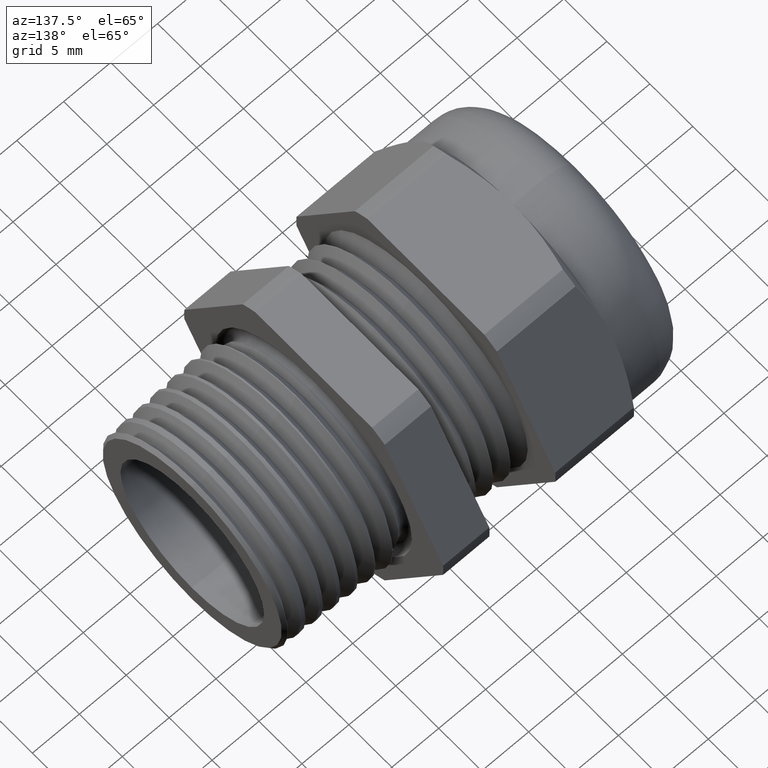
[diagram: clean part render]
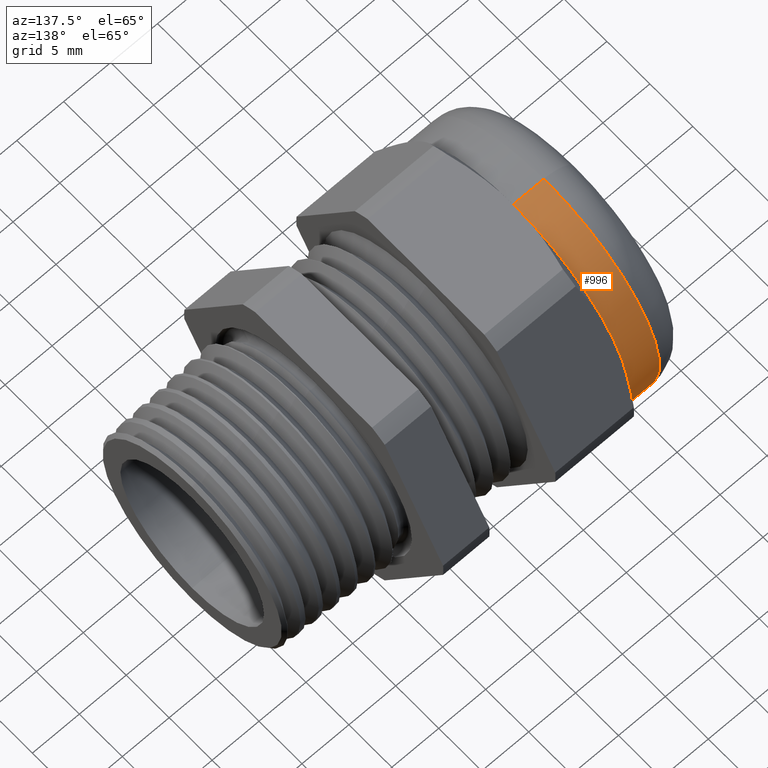
[diagram: same view with one face highlighted and labeled with its STEP entity id]
A machine part, auxiliary view. The second image highlights one B-rep face of the part: STEP entity #996.
In plain terms, the highlighted cylindrical surface (partial cylindrical patch) has radius 13.462 mm, axis along (-1, 0, 0).
Its self-contained STEP definition (entity closure, byte-faithful):
#991 = VERTEX_POINT ( 'NONE', #2963 ) ;
#996 = ADVANCED_FACE ( 'NONE', ( #2956 ), #2955, .T. ) ;
#997 = EDGE_LOOP ( 'NONE', ( #1061, #1065, #1067, #1068, #1090, #1094 ) ) ;
#1032 = EDGE_CURVE ( 'NONE', #1033, #991, #3064, .T. ) ;
#1033 = VERTEX_POINT ( 'NONE', #3059 ) ;
#1061 = ORIENTED_EDGE ( 'NONE', *, *, #1062, .T. ) ;
#1062 = EDGE_CURVE ( 'NONE', #1063, #1064, #3133, .T. ) ;
#1063 = VERTEX_POINT ( 'NONE', #3125 ) ;
#1064 = VERTEX_POINT ( 'NONE', #3124 ) ;
#1065 = ORIENTED_EDGE ( 'NONE', *, *, #1066, .T. ) ;
#1066 = EDGE_CURVE ( 'NONE', #1064, #1033, #3123, .T. ) ;
#1067 = ORIENTED_EDGE ( 'NONE', *, *, #1032, .T. ) ;
#1068 = ORIENTED_EDGE ( 'NONE', *, *, #1098, .F. ) ;
#1090 = ORIENTED_EDGE ( 'NONE', *, *, #1091, .T. ) ;
#1091 = EDGE_CURVE ( 'NONE', #1099, #1092, #3150, .T. ) ;
#1092 = VERTEX_POINT ( 'NONE', #3146 ) ;
#1094 = ORIENTED_EDGE ( 'NONE', *, *, #1095, .T. ) ;
#1095 = EDGE_CURVE ( 'NONE', #1092, #1063, #3145, .T. ) ;
#1098 = EDGE_CURVE ( 'NONE', #1099, #991, #3194, .T. ) ;
#1099 = VERTEX_POINT ( 'NONE', #3190 ) ;
#2950 = DIRECTION ( 'NONE',  ( 0.0000000000000000000, 0.0000000000000000000, 1.000000000000000000 ) ) ;
#2951 = DIRECTION ( 'NONE',  ( -1.000000000000000000, 0.0000000000000000000, 0.0000000000000000000 ) ) ;
#2952 = CARTESIAN_POINT ( 'NONE',  ( -0.7238591030180623300, 0.0000000000000000000, 0.0000000000000000000 ) ) ;
#2953 = AXIS2_PLACEMENT_3D ( 'NONE', #2952, #2951, #2950 ) ;
#2955 = CYLINDRICAL_SURFACE ( 'NONE', #2953, 0.5299999999999999200 ) ;
#2956 = FACE_OUTER_BOUND ( 'NONE', #997, .T. ) ;
#2963 = CARTESIAN_POINT ( 'NONE',  ( -0.9663999999999999300, 0.0000000000000000000, 0.5299999999999999200 ) ) ;
#3059 = CARTESIAN_POINT ( 'NONE',  ( -0.9663999999999999300, 6.490628035480971200E-017, -0.5299999999999999200 ) ) ;
#3060 = DIRECTION ( 'NONE',  ( 0.0000000000000000000, 0.0000000000000000000, -1.000000000000000000 ) ) ;
#3061 = DIRECTION ( 'NONE',  ( 1.000000000000000000, 0.0000000000000000000, 0.0000000000000000000 ) ) ;
#3062 = CARTESIAN_POINT ( 'NONE',  ( -0.9663999999999999300, 0.0000000000000000000, 0.0000000000000000000 ) ) ;
#3063 = AXIS2_PLACEMENT_3D ( 'NONE', #3062, #3061, #3060 ) ;
#3064 = CIRCLE ( 'NONE', #3063, 0.5299999999999999200 ) ;
#3120 = DIRECTION ( 'NONE',  ( -1.000000000000000000, 0.0000000000000000000, 0.0000000000000000000 ) ) ;
#3121 = VECTOR ( 'NONE', #3120, 39.37007874015748100 ) ;
#3122 = CARTESIAN_POINT ( 'NONE',  ( -0.7238591030180623300, 6.490628035480971200E-017, -0.5299999999999999200 ) ) ;
#3123 = LINE ( 'NONE', #3122, #3121 ) ;
#3124 = CARTESIAN_POINT ( 'NONE',  ( -0.8375000000000000200, 0.0000000000000000000, -0.5300000000000000300 ) ) ;
#3125 = CARTESIAN_POINT ( 'NONE',  ( -0.8375000000000000200, 0.4589934640057524200, -0.2650000000000001200 ) ) ;
#3126 = DIRECTION ( 'NONE',  ( 0.0000000000000000000, 0.0000000000000000000, 1.000000000000000000 ) ) ;
#3127 = DIRECTION ( 'NONE',  ( -1.000000000000000000, 0.0000000000000000000, 0.0000000000000000000 ) ) ;
#3128 = CARTESIAN_POINT ( 'NONE',  ( -0.8375000000000000200, 0.0000000000000000000, 0.0000000000000000000 ) ) ;
#3129 = AXIS2_PLACEMENT_3D ( 'NONE', #3128, #3127, #3126 ) ;
#3133 = CIRCLE ( 'NONE', #3129, 0.5299999999999999200 ) ;
#3140 = DIRECTION ( 'NONE',  ( 0.0000000000000000000, 0.0000000000000000000, 1.000000000000000000 ) ) ;
#3141 = DIRECTION ( 'NONE',  ( -1.000000000000000000, 0.0000000000000000000, 0.0000000000000000000 ) ) ;
#3142 = CARTESIAN_POINT ( 'NONE',  ( -0.8375000000000000200, 0.0000000000000000000, 0.0000000000000000000 ) ) ;
#3143 = AXIS2_PLACEMENT_3D ( 'NONE', #3142, #3141, #3140 ) ;
#3145 = CIRCLE ( 'NONE', #3143, 0.5299999999999999200 ) ;
#3146 = CARTESIAN_POINT ( 'NONE',  ( -0.8375000000000000200, 0.4589934640057524700, 0.2650000000000000700 ) ) ;
#3147 = DIRECTION ( 'NONE',  ( 0.0000000000000000000, 0.0000000000000000000, 1.000000000000000000 ) ) ;
#3148 = DIRECTION ( 'NONE',  ( -1.000000000000000000, 0.0000000000000000000, 0.0000000000000000000 ) ) ;
#3149 = AXIS2_PLACEMENT_3D ( 'NONE', #3156, #3148, #3147 ) ;
#3150 = CIRCLE ( 'NONE', #3149, 0.5299999999999999200 ) ;
#3156 = CARTESIAN_POINT ( 'NONE',  ( -0.8375000000000000200, 0.0000000000000000000, 0.0000000000000000000 ) ) ;
#3190 = CARTESIAN_POINT ( 'NONE',  ( -0.8375000000000000200, 0.0000000000000000000, 0.5300000000000000300 ) ) ;
#3191 = DIRECTION ( 'NONE',  ( -1.000000000000000000, 0.0000000000000000000, 0.0000000000000000000 ) ) ;
#3192 = VECTOR ( 'NONE', #3191, 39.37007874015748100 ) ;
#3193 = CARTESIAN_POINT ( 'NONE',  ( -0.7238591030180623300, 0.0000000000000000000, 0.5299999999999999200 ) ) ;
#3194 = LINE ( 'NONE', #3193, #3192 ) ;